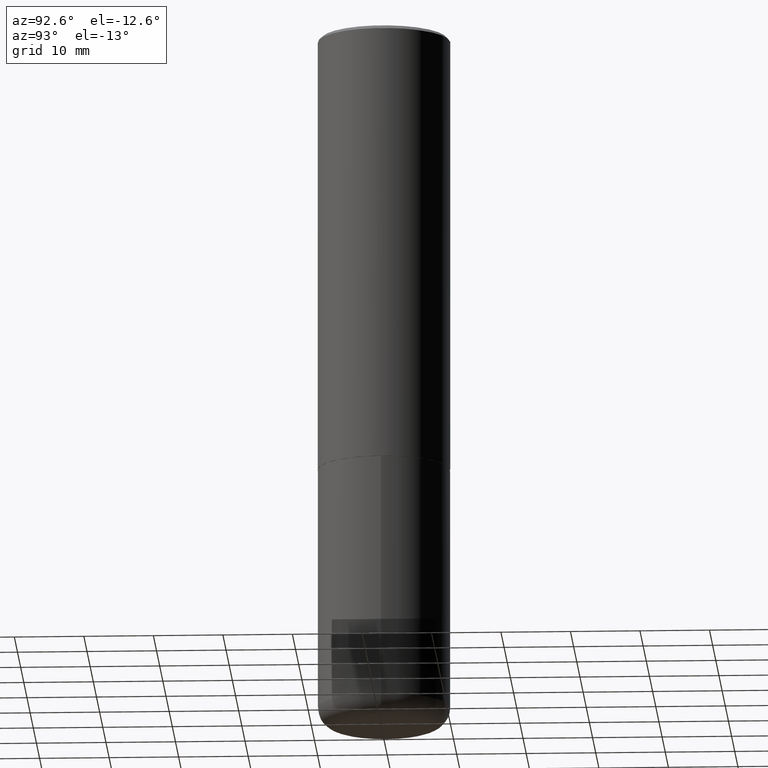
[diagram: clean part render]
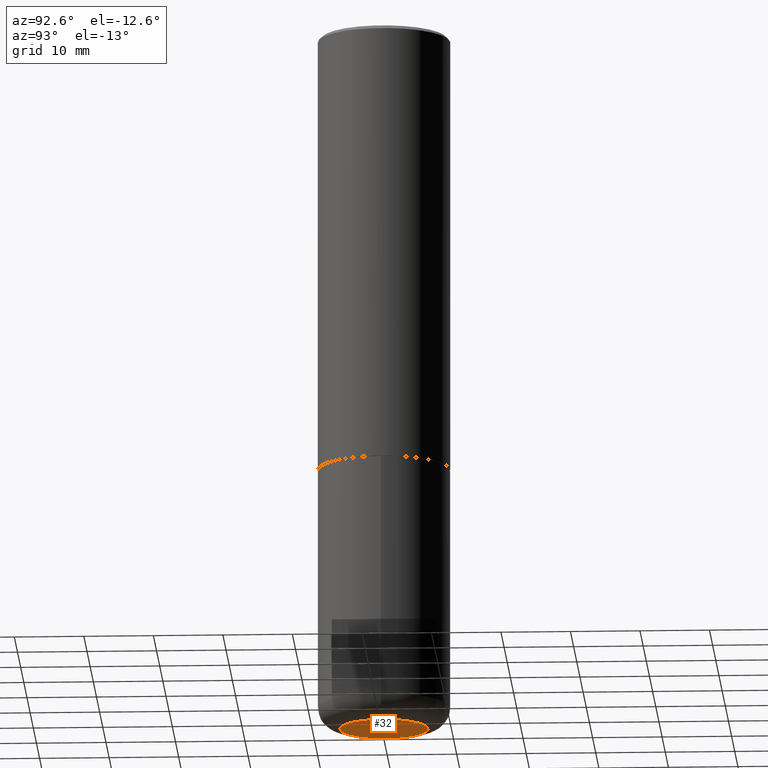
[diagram: same view with one face highlighted and labeled with its STEP entity id]
A machine part, auxiliary view. The second image highlights one B-rep face of the part: STEP entity #32.
In plain terms, the highlighted planar face has unit normal (0, -0, -1).
Its self-contained STEP definition (entity closure, byte-faithful):
#9 = DIRECTION ( 'NONE',  ( -2.445468806185136597E-29, 3.491481338843145583E-15, 1.000000000000000000 ) ) ;
#21 = ORIENTED_EDGE ( 'NONE', *, *, #262, .F. ) ;
#32 = ADVANCED_FACE ( 'NONE', ( #255 ), #332, .T. ) ;
#35 = CARTESIAN_POINT ( 'NONE',  ( -0.2500000000000000555, -1.152726172244457105E-14, -4.000000000000000000 ) ) ;
#46 = CARTESIAN_POINT ( 'NONE',  ( 9.781875224740546387E-29, -1.396592535537258233E-14, -4.000000000000000000 ) ) ;
#47 = ORIENTED_EDGE ( 'NONE', *, *, #256, .F. ) ;
#80 = DIRECTION ( 'NONE',  ( 2.438088387897960049E-29, -3.491481338843145188E-15, -1.000000000000000000 ) ) ;
#111 = DIRECTION ( 'NONE',  ( -2.445468806185136597E-29, 3.491481338843145583E-15, 1.000000000000000000 ) ) ;
#127 = AXIS2_PLACEMENT_3D ( 'NONE', #240, #9, #141 ) ;
#141 = DIRECTION ( 'NONE',  ( 1.000000000000000000, -6.982962677686269077E-15, 0.000000000000000000 ) ) ;
#169 = VERTEX_POINT ( 'NONE', #35 ) ;
#222 = AXIS2_PLACEMENT_3D ( 'NONE', #334, #80, #294 ) ;
#230 = EDGE_LOOP ( 'NONE', ( #21, #47 ) ) ;
#240 = CARTESIAN_POINT ( 'NONE',  ( 9.781875224740546387E-29, -1.396592535537258233E-14, -4.000000000000000000 ) ) ;
#250 = AXIS2_PLACEMENT_3D ( 'NONE', #46, #111, #270 ) ;
#255 = FACE_OUTER_BOUND ( 'NONE', #230, .T. ) ;
#256 = EDGE_CURVE ( 'NONE', #169, #402, #259, .T. ) ;
#259 = CIRCLE ( 'NONE', #250, 0.2500000000000000555 ) ;
#262 = EDGE_CURVE ( 'NONE', #402, #169, #317, .T. ) ;
#266 = CARTESIAN_POINT ( 'NONE',  ( 0.2500000000000000555, -1.571166602479415059E-14, -4.000000000000000000 ) ) ;
#270 = DIRECTION ( 'NONE',  ( 1.000000000000000000, -6.982962677686269077E-15, 0.000000000000000000 ) ) ;
#294 = DIRECTION ( 'NONE',  ( -1.000000000000000000, 6.982962677686265922E-15, -4.876176775795935793E-29 ) ) ;
#317 = CIRCLE ( 'NONE', #127, 0.2500000000000000555 ) ;
#332 = PLANE ( 'NONE',  #222 ) ;
#334 = CARTESIAN_POINT ( 'NONE',  ( 9.781875224740546387E-29, -1.396592535537258233E-14, -4.000000000000000000 ) ) ;
#402 = VERTEX_POINT ( 'NONE', #266 ) ;